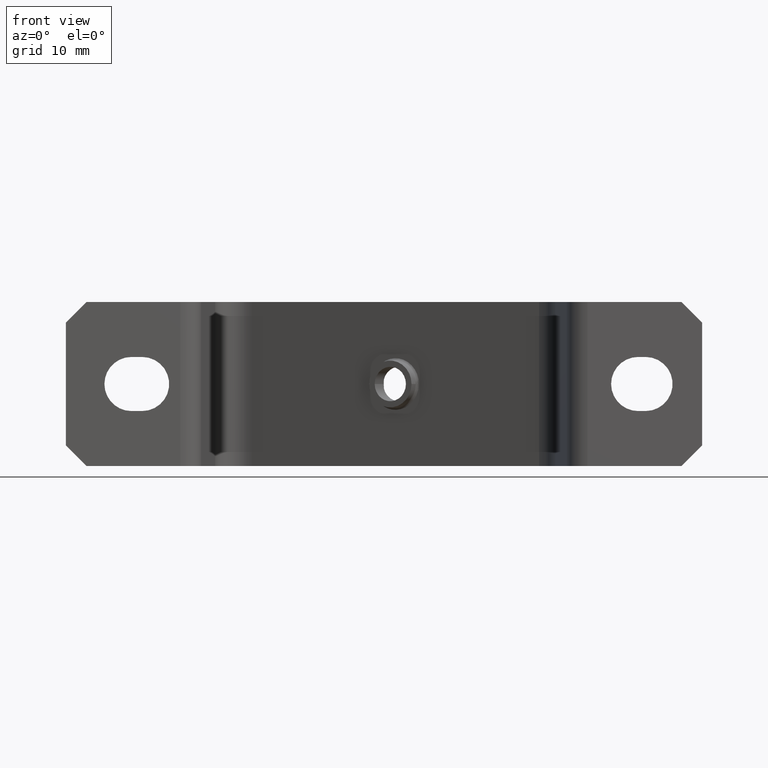
[diagram: clean part render]
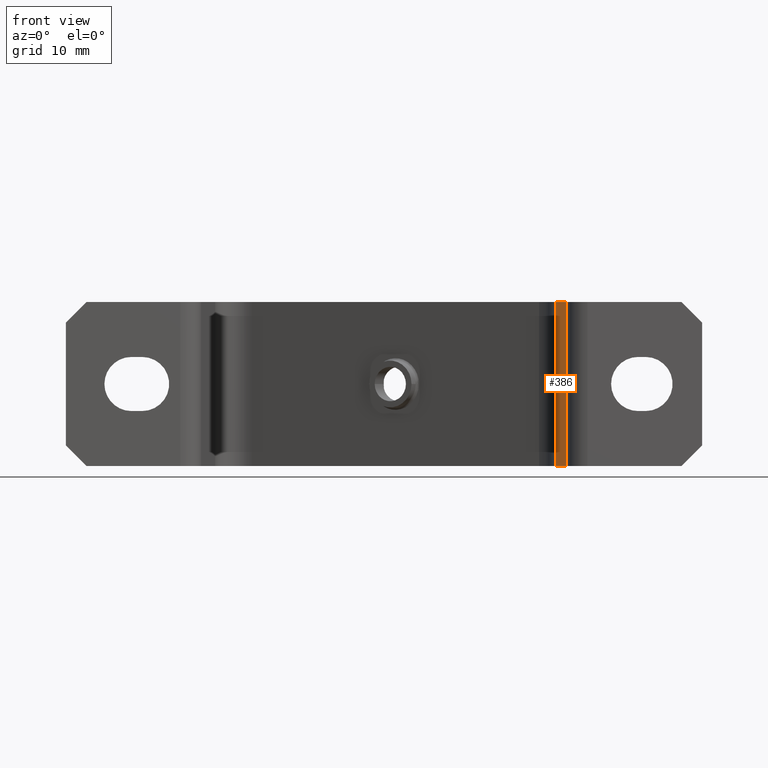
[diagram: same view with one face highlighted and labeled with its STEP entity id]
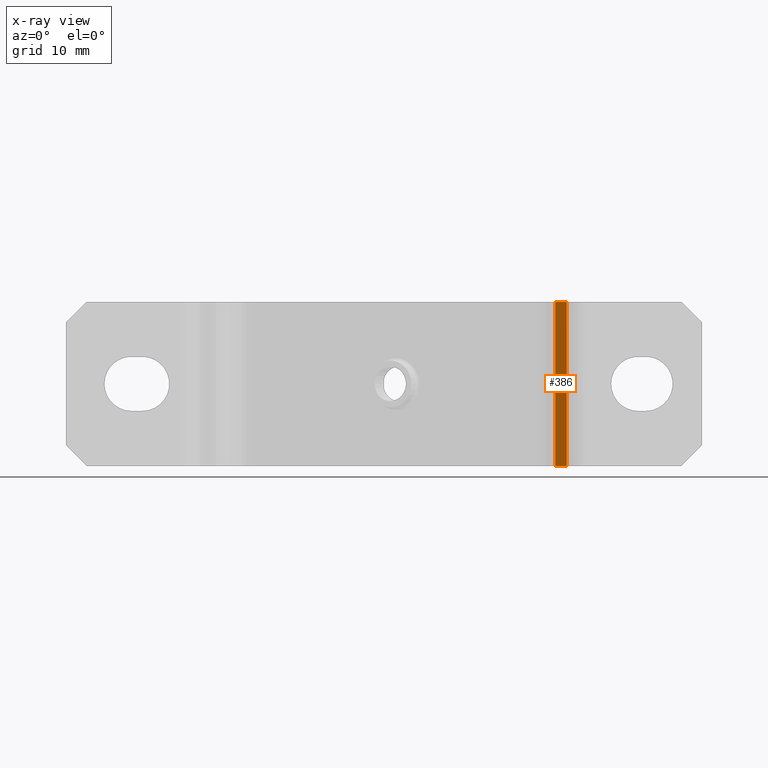
[diagram: x-ray of the same camera — body ghosted, the highlighted face saturated]
A machine part, front view. The second image highlights one B-rep face of the part: STEP entity #386.
The next image is the same camera in x-ray: the body ghosted, the highlighted face saturated — about 0% of this face is hidden behind the body in this view.
In plain terms, the highlighted planar face has unit normal (-0.9962, -0.0872, 0).
Its self-contained STEP definition (entity closure, byte-faithful):
#61 = CARTESIAN_POINT ( 'NONE',  ( 22.26712193765796100, -17.32508999304764800, 0.0000000000000000000 ) ) ;
#102 = CARTESIAN_POINT ( 'NONE',  ( 22.26712193765796100, -17.32508999304764800, 20.00000000000000000 ) ) ;
#140 = CARTESIAN_POINT ( 'NONE',  ( 20.90119838178151200, -1.712512307805548200, 0.0000000000000000000 ) ) ;
#144 = CARTESIAN_POINT ( 'NONE',  ( 20.90119838178151200, -1.712512307805548200, 20.00000000000000000 ) ) ;
#217 = LINE ( 'NONE', #218, #1666 ) ;
#218 = CARTESIAN_POINT ( 'NONE',  ( 20.90119838178150900, -1.712512307805447200, 20.00000000000000000 ) ) ;
#244 = DIRECTION ( 'NONE',  ( -0.0000000000000000000, -0.0000000000000000000, -1.000000000000000000 ) ) ;
#353 = EDGE_CURVE ( 'NONE', #1349, #1308, #757, .T. ) ;
#354 = EDGE_CURVE ( 'NONE', #1345, #1324, #707, .T. ) ;
#356 = EDGE_CURVE ( 'NONE', #1324, #1308, #706, .T. ) ;
#386 = ADVANCED_FACE ( 'NONE', ( #899 ), #931, .T. ) ;
#403 = EDGE_CURVE ( 'NONE', #1345, #1349, #217, .T. ) ;
#706 = LINE ( 'NONE', #753, #1649 ) ;
#707 = LINE ( 'NONE', #730, #1610 ) ;
#730 = CARTESIAN_POINT ( 'NONE',  ( 20.90119838178150500, -1.712512307805447200, 20.00000000000000000 ) ) ;
#736 = CARTESIAN_POINT ( 'NONE',  ( 20.90119838178150500, -1.712512307805447200, 0.0000000000000000000 ) ) ;
#746 = DIRECTION ( 'NONE',  ( 0.08715574274765430800, -0.9961946980917458800, 0.0000000000000000000 ) ) ;
#753 = CARTESIAN_POINT ( 'NONE',  ( 22.26712193765806400, -17.32508999304831900, 20.00000000000000000 ) ) ;
#757 = LINE ( 'NONE', #736, #1636 ) ;
#767 = DIRECTION ( 'NONE',  ( -0.0000000000000000000, -0.0000000000000000000, -1.000000000000000000 ) ) ;
#777 = DIRECTION ( 'NONE',  ( 0.08715574274765430800, -0.9961946980917458800, 0.0000000000000000000 ) ) ;
#893 = DIRECTION ( 'NONE',  ( -0.9961946980917458800, -0.08715574274765430800, 0.0000000000000000000 ) ) ;
#899 = FACE_OUTER_BOUND ( 'NONE', #1051, .T. ) ;
#914 = CARTESIAN_POINT ( 'NONE',  ( 26.75055076300281300, -68.57091596244956100, 20.00000000000000000 ) ) ;
#928 = DIRECTION ( 'NONE',  ( 0.08715574274765430800, -0.9961946980917458800, 0.0000000000000000000 ) ) ;
#931 = PLANE ( 'NONE',  #1663 ) ;
#1051 = EDGE_LOOP ( 'NONE', ( #1187, #1132, #1119, #1226 ) ) ;
#1119 = ORIENTED_EDGE ( 'NONE', *, *, #353, .T. ) ;
#1132 = ORIENTED_EDGE ( 'NONE', *, *, #403, .T. ) ;
#1187 = ORIENTED_EDGE ( 'NONE', *, *, #354, .F. ) ;
#1226 = ORIENTED_EDGE ( 'NONE', *, *, #356, .F. ) ;
#1308 = VERTEX_POINT ( 'NONE', #61 ) ;
#1324 = VERTEX_POINT ( 'NONE', #102 ) ;
#1345 = VERTEX_POINT ( 'NONE', #144 ) ;
#1349 = VERTEX_POINT ( 'NONE', #140 ) ;
#1610 = VECTOR ( 'NONE', #746, 1000.000000000000000 ) ;
#1636 = VECTOR ( 'NONE', #777, 1000.000000000000000 ) ;
#1649 = VECTOR ( 'NONE', #767, 1000.000000000000000 ) ;
#1663 = AXIS2_PLACEMENT_3D ( 'NONE', #914, #893, #928 ) ;
#1666 = VECTOR ( 'NONE', #244, 1000.000000000000000 ) ;